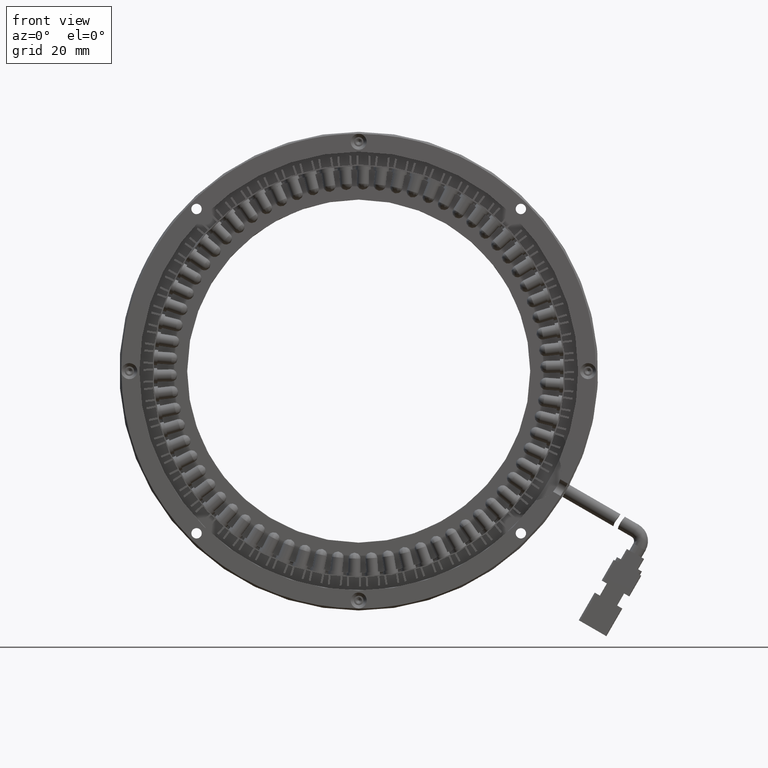
[diagram: clean part render]
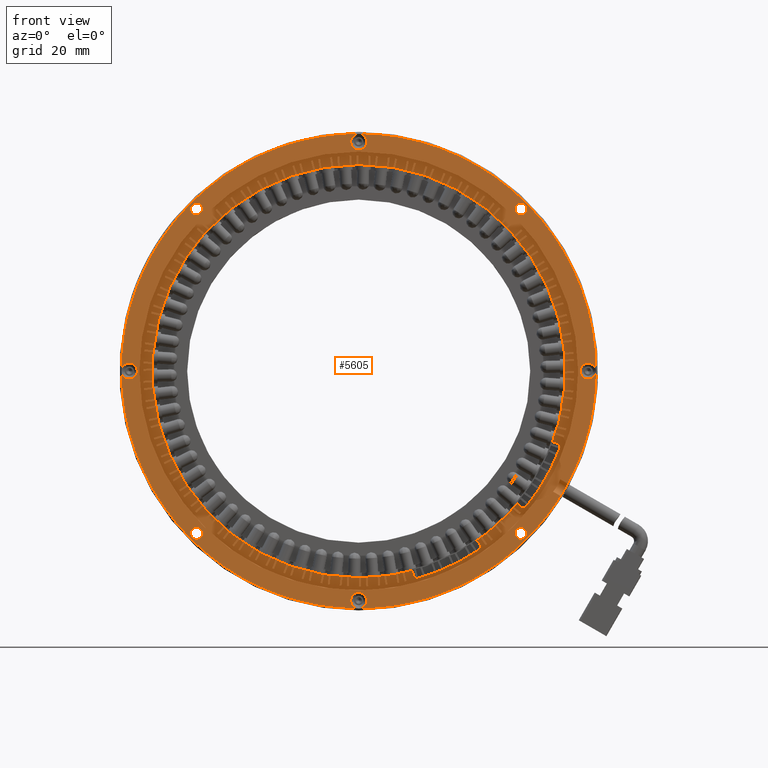
[diagram: same view with one face highlighted and labeled with its STEP entity id]
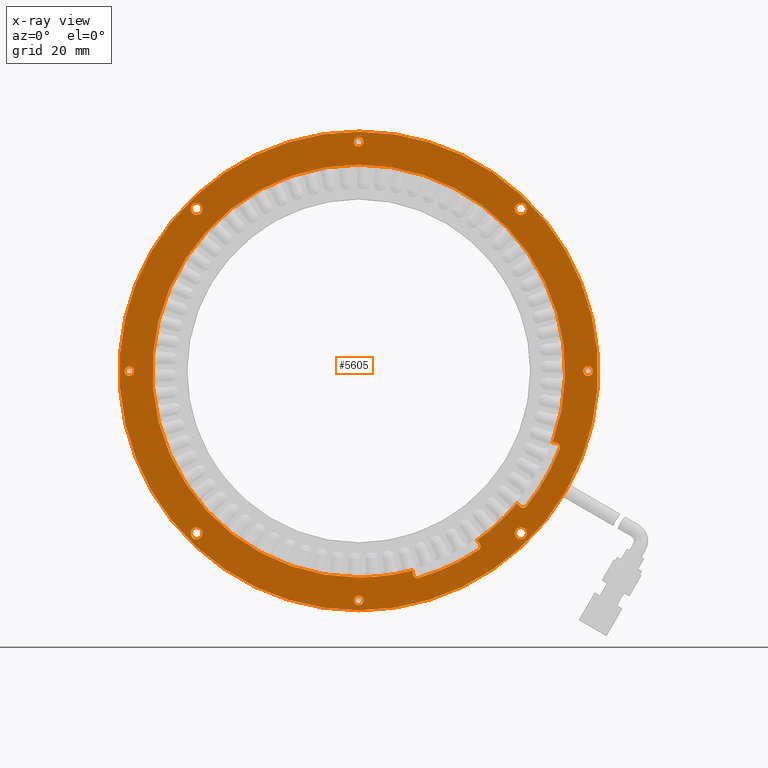
[diagram: x-ray of the same camera — body ghosted, the highlighted face saturated]
A machine part, front view. The second image highlights one B-rep face of the part: STEP entity #5605.
The next image is the same camera in x-ray: the body ghosted, the highlighted face saturated — about 0% of this face is hidden behind the body in this view.
In plain terms, the highlighted planar face has unit normal (0, 1, 0).
Its self-contained STEP definition (entity closure, byte-faithful):
#16 = EDGE_LOOP ( 'NONE', ( #7467, #26096 ) ) ;
#271 = DIRECTION ( 'NONE',  ( 0.0000000000000000000, 0.0000000000000000000, 1.000000000000000000 ) ) ;
#371 = DIRECTION ( 'NONE',  ( -0.0000000000000000000, 1.000000000000000000, 0.0000000000000000000 ) ) ;
#372 = AXIS2_PLACEMENT_3D ( 'NONE', #51367, #21735, #56369 ) ;
#426 = CARTESIAN_POINT ( 'NONE',  ( 70.98181902692999800, 21.01889671361712400, -50.34647656362000100 ) ) ;
#496 = AXIS2_PLACEMENT_3D ( 'NONE', #31059, #1414, #36026 ) ;
#821 = DIRECTION ( 'NONE',  ( -0.0000000000000000000, -1.000000000000000000, -0.0000000000000000000 ) ) ;
#1324 = VECTOR ( 'NONE', #44943, 1000.000000000000200 ) ;
#1414 = DIRECTION ( 'NONE',  ( 0.0000000000000000000, -1.000000000000000000, -0.0000000000000000000 ) ) ;
#1431 = DIRECTION ( 'NONE',  ( 0.0000000000000000000, -1.000000000000000000, 0.0000000000000000000 ) ) ;
#2138 = VERTEX_POINT ( 'NONE', #36192 ) ;
#2303 = DIRECTION ( 'NONE',  ( 0.0000000000000000000, -1.000000000000000000, -0.0000000000000000000 ) ) ;
#2433 = CARTESIAN_POINT ( 'NONE',  ( 113.9562451095000000, 21.01889671361712400, 0.0000000000000000000 ) ) ;
#2599 = EDGE_CURVE ( 'NONE', #31081, #60564, #63665, .T. ) ;
#2626 = CIRCLE ( 'NONE', #56353, 1.199999999999598500 ) ;
#2632 = DIRECTION ( 'NONE',  ( -0.0000000000000000000, 1.000000000000000000, -0.0000000000000000000 ) ) ;
#2735 = DIRECTION ( 'NONE',  ( 1.387778780781454000E-014, 0.0000000000000000000, 1.000000000000000000 ) ) ;
#2867 = FACE_OUTER_BOUND ( 'NONE', #16, .T. ) ;
#3204 = CARTESIAN_POINT ( 'NONE',  ( 105.3451509462000100, 21.01889671361712400, -18.85828428286999900 ) ) ;
#3447 = AXIS2_PLACEMENT_3D ( 'NONE', #2433, #37032, #7394 ) ;
#3589 = CARTESIAN_POINT ( 'NONE',  ( -5.986352945838000900, 21.01889671362000200, -62.40000000000000600 ) ) ;
#3903 = CARTESIAN_POINT ( 'NONE',  ( 97.11488502777000100, 21.01889671361723400, 40.65863991823000800 ) ) ;
#4033 = DIRECTION ( 'NONE',  ( 0.0000000000000000000, -1.000000000000000000, 0.0000000000000000000 ) ) ;
#4404 = FACE_BOUND ( 'NONE', #45137, .T. ) ;
#4615 = EDGE_CURVE ( 'NONE', #7716, #60564, #58438, .T. ) ;
#4621 = DIRECTION ( 'NONE',  ( 0.0000000000000000000, 0.0000000000000000000, 1.000000000000000000 ) ) ;
#4678 = VERTEX_POINT ( 'NONE', #11614 ) ;
#5013 = CARTESIAN_POINT ( 'NONE',  ( 105.9090680539999700, 21.01889671361712400, -19.06353332470000000 ) ) ;
#5026 = CARTESIAN_POINT ( 'NONE',  ( 85.94812115529238400, 21.01889671361679700, -42.52401377225068300 ) ) ;
#5125 = CIRCLE ( 'NONE', #42236, 1.000000000000000900 ) ;
#5572 = EDGE_CURVE ( 'NONE', #13397, #48005, #32298, .T. ) ;
#5605 = ADVANCED_FACE ( 'NONE', ( #45497, #43892, #17618, #4404, #55553, #30750, #42367, #29168, #16101, #2867 ), #47946, .T. ) ;
#5770 = EDGE_LOOP ( 'NONE', ( #43228, #20849 ) ) ;
#5774 = CIRCLE ( 'NONE', #41423, 1.200000000000000000 ) ;
#6103 = AXIS2_PLACEMENT_3D ( 'NONE', #3204, #37824, #8202 ) ;
#6238 = ORIENTED_EDGE ( 'NONE', *, *, #53490, .T. ) ;
#6480 = VERTEX_POINT ( 'NONE', #6535 ) ;
#6535 = CARTESIAN_POINT ( 'NONE',  ( 56.45624510954999000, 21.01889671361712400, 58.70000000000001700 ) ) ;
#6573 = CIRCLE ( 'NONE', #50766, 51.75000000000000700 ) ;
#6725 = EDGE_CURVE ( 'NONE', #17032, #14611, #2626, .T. ) ;
#7135 = DIRECTION ( 'NONE',  ( 0.0000000000000000000, 1.000000000000000000, 0.0000000000000000000 ) ) ;
#7394 = DIRECTION ( 'NONE',  ( 0.0000000000000000000, 0.0000000000000000000, -1.000000000000000000 ) ) ;
#7467 = ORIENTED_EDGE ( 'NONE', *, *, #23129, .T. ) ;
#7696 = CARTESIAN_POINT ( 'NONE',  ( 56.45624510954999000, 21.01889671361712400, -58.70000000000000300 ) ) ;
#7716 = VERTEX_POINT ( 'NONE', #56766 ) ;
#8074 = EDGE_CURVE ( 'NONE', #9113, #61714, #50055, .T. ) ;
#8202 = DIRECTION ( 'NONE',  ( -8.326672684688724500E-014, 0.0000000000000000000, 1.000000000000000000 ) ) ;
#8497 = CARTESIAN_POINT ( 'NONE',  ( 86.85038465600565900, 21.01889671362000200, -43.40732980994000200 ) ) ;
#8577 = DIRECTION ( 'NONE',  ( 0.0000000000000000000, 0.0000000000000000000, 1.000000000000000000 ) ) ;
#8662 = EDGE_CURVE ( 'NONE', #31245, #6480, #63081, .T. ) ;
#8725 = VERTEX_POINT ( 'NONE', #47288 ) ;
#8921 = DIRECTION ( 'NONE',  ( 0.0000000000000000000, 0.0000000000000000000, 1.000000000000000000 ) ) ;
#9113 = VERTEX_POINT ( 'NONE', #34913 ) ;
#9229 = EDGE_CURVE ( 'NONE', #4678, #46475, #64257, .T. ) ;
#9390 = AXIS2_PLACEMENT_3D ( 'NONE', #5013, #39601, #10003 ) ;
#9709 = CARTESIAN_POINT ( 'NONE',  ( 56.45624510954999700, 21.01889671361719500, 60.00000000000000000 ) ) ;
#10003 = DIRECTION ( 'NONE',  ( 0.0000000000000000000, 0.0000000000000000000, 1.000000000000000000 ) ) ;
#10027 = CIRCLE ( 'NONE', #56879, 0.9999999999999940000 ) ;
#10254 = EDGE_LOOP ( 'NONE', ( #20626, #60866 ) ) ;
#10342 = ORIENTED_EDGE ( 'NONE', *, *, #23416, .T. ) ;
#10447 = CIRCLE ( 'NONE', #59686, 60.00000000000000000 ) ;
#10934 = CIRCLE ( 'NONE', #21327, 1.200000000000013500 ) ;
#11251 = ORIENTED_EDGE ( 'NONE', *, *, #42212, .F. ) ;
#11408 = DIRECTION ( 'NONE',  ( 0.0000000000000000000, -1.000000000000000000, -0.0000000000000000000 ) ) ;
#11614 = CARTESIAN_POINT ( 'NONE',  ( 86.50617681832380900, 21.01889671361712400, -42.91575007264151500 ) ) ;
#11755 = AXIS2_PLACEMENT_3D ( 'NONE', #22348, #56936, #27288 ) ;
#11939 = AXIS2_PLACEMENT_3D ( 'NONE', #3589, #38190, #8577 ) ;
#12547 = ORIENTED_EDGE ( 'NONE', *, *, #5572, .T. ) ;
#12614 = ORIENTED_EDGE ( 'NONE', *, *, #55952, .F. ) ;
#12640 = CIRCLE ( 'NONE', #32114, 53.99999999999999300 ) ;
#12805 = CARTESIAN_POINT ( 'NONE',  ( 70.07451705029224300, 21.01889671361679700, -49.92599692893465100 ) ) ;
#13116 = EDGE_CURVE ( 'NONE', #38867, #8725, #5125, .T. ) ;
#13277 = CARTESIAN_POINT ( 'NONE',  ( 15.79760519132000100, 21.01889671361723400, -39.15863991822999400 ) ) ;
#13280 = DIRECTION ( 'NONE',  ( -0.5735764363525099900, 0.0000000000000000000, 0.8191520442879666200 ) ) ;
#13325 = VERTEX_POINT ( 'NONE', #46374 ) ;
#13397 = VERTEX_POINT ( 'NONE', #17392 ) ;
#13845 = AXIS2_PLACEMENT_3D ( 'NONE', #52298, #22649, #57275 ) ;
#13884 = DIRECTION ( 'NONE',  ( 0.0000000000000000000, 0.0000000000000000000, 1.000000000000000000 ) ) ;
#13916 = EDGE_LOOP ( 'NONE', ( #14972, #43594 ) ) ;
#14020 = CARTESIAN_POINT ( 'NONE',  ( 56.45624510954999000, 21.01889671361647400, 0.0000000000000000000 ) ) ;
#14164 = VERTEX_POINT ( 'NONE', #50775 ) ;
#14506 = CARTESIAN_POINT ( 'NONE',  ( 113.9562451095000000, 21.01889671361712400, 1.200000000000000000 ) ) ;
#14565 = CARTESIAN_POINT ( 'NONE',  ( 56.45624510954999000, 21.01889671361719500, -60.00000000000000000 ) ) ;
#14586 = CARTESIAN_POINT ( 'NONE',  ( 15.79760519132000100, 21.01889671361723400, 42.15863991823000800 ) ) ;
#14611 = VERTEX_POINT ( 'NONE', #31135 ) ;
#14872 = CARTESIAN_POINT ( 'NONE',  ( 56.45624510954999000, 21.01889671361712400, -56.30000000000000400 ) ) ;
#14972 = ORIENTED_EDGE ( 'NONE', *, *, #23962, .F. ) ;
#15102 = EDGE_CURVE ( 'NONE', #62702, #31757, #10027, .T. ) ;
#15464 = AXIS2_PLACEMENT_3D ( 'NONE', #25700, #60337, #30702 ) ;
#15672 = ORIENTED_EDGE ( 'NONE', *, *, #61418, .T. ) ;
#15782 = CARTESIAN_POINT ( 'NONE',  ( 105.6871710895282900, 21.01889671361996300, -17.91859166208542600 ) ) ;
#16101 = FACE_BOUND ( 'NONE', #47945, .T. ) ;
#16114 = ORIENTED_EDGE ( 'NONE', *, *, #30242, .T. ) ;
#16343 = CARTESIAN_POINT ( 'NONE',  ( 56.45624510954999000, 21.01889671361647400, 51.75000000000000700 ) ) ;
#16361 = ORIENTED_EDGE ( 'NONE', *, *, #45975, .T. ) ;
#16427 = AXIS2_PLACEMENT_3D ( 'NONE', #32281, #2632, #37218 ) ;
#16459 = EDGE_CURVE ( 'NONE', #47887, #40957, #10447, .T. ) ;
#16529 = DIRECTION ( 'NONE',  ( -0.0000000000000000000, 1.000000000000000000, 0.0000000000000000000 ) ) ;
#16743 = ORIENTED_EDGE ( 'NONE', *, *, #8074, .F. ) ;
#16816 = DIRECTION ( 'NONE',  ( 0.0000000000000000000, -1.000000000000000000, 0.0000000000000000000 ) ) ;
#16921 = VECTOR ( 'NONE', #13280, 1000.000000000000100 ) ;
#17032 = VERTEX_POINT ( 'NONE', #64019 ) ;
#17392 = CARTESIAN_POINT ( 'NONE',  ( 106.2510881973325600, 21.01889671361712400, -18.12384070392067100 ) ) ;
#17618 = FACE_BOUND ( 'NONE', #33808, .T. ) ;
#18458 = DIRECTION ( 'NONE',  ( 0.0000000000000000000, -1.000000000000000000, -0.0000000000000000000 ) ) ;
#18734 = ORIENTED_EDGE ( 'NONE', *, *, #36959, .T. ) ;
#18782 = EDGE_CURVE ( 'NONE', #44115, #7716, #6573, .T. ) ;
#19146 = LINE ( 'NONE', #59847, #1324 ) ;
#19663 = CARTESIAN_POINT ( 'NONE',  ( 97.11488502777000100, 21.01889671361723400, -40.65863991823000800 ) ) ;
#20036 = CARTESIAN_POINT ( 'NONE',  ( 56.45624510954999000, 21.01889671361712400, 0.0000000000000000000 ) ) ;
#20296 = ORIENTED_EDGE ( 'NONE', *, *, #53830, .T. ) ;
#20353 = ORIENTED_EDGE ( 'NONE', *, *, #4615, .T. ) ;
#20626 = ORIENTED_EDGE ( 'NONE', *, *, #24708, .F. ) ;
#20849 = ORIENTED_EDGE ( 'NONE', *, *, #53738, .T. ) ;
#21219 = CARTESIAN_POINT ( 'NONE',  ( 15.79760519132000100, 21.01889671361723400, 40.65863991823000800 ) ) ;
#21327 = AXIS2_PLACEMENT_3D ( 'NONE', #53787, #24081, #58744 ) ;
#21735 = DIRECTION ( 'NONE',  ( 0.0000000000000000000, -1.000000000000000000, 0.0000000000000000000 ) ) ;
#22335 = AXIS2_PLACEMENT_3D ( 'NONE', #27761, #62391, #32782 ) ;
#22348 = CARTESIAN_POINT ( 'NONE',  ( 15.79760519132000100, 21.01889671361723400, 40.65863991823000800 ) ) ;
#22479 = AXIS2_PLACEMENT_3D ( 'NONE', #36765, #7135, #41767 ) ;
#22649 = DIRECTION ( 'NONE',  ( 0.0000000000000000000, 1.000000000000000000, 0.0000000000000000000 ) ) ;
#22750 = EDGE_CURVE ( 'NONE', #33919, #49518, #58419, .T. ) ;
#22846 = CARTESIAN_POINT ( 'NONE',  ( 56.45624510954999000, 21.01889671361647400, 0.0000000000000000000 ) ) ;
#22914 = DIRECTION ( 'NONE',  ( 0.0000000000000000000, -1.000000000000000000, 0.0000000000000000000 ) ) ;
#23067 = CARTESIAN_POINT ( 'NONE',  ( 106.2510881973222600, 21.01889671362000200, -18.12384070391999900 ) ) ;
#23129 = EDGE_CURVE ( 'NONE', #40957, #47887, #55226, .T. ) ;
#23416 = EDGE_CURVE ( 'NONE', #31081, #13325, #27208, .T. ) ;
#23962 = EDGE_CURVE ( 'NONE', #33060, #56285, #49048, .T. ) ;
#24081 = DIRECTION ( 'NONE',  ( -0.0000000000000000000, 1.000000000000000000, -0.0000000000000000000 ) ) ;
#24551 = DIRECTION ( 'NONE',  ( 0.0000000000000000000, 0.0000000000000000000, 1.000000000000000000 ) ) ;
#24708 = EDGE_CURVE ( 'NONE', #41625, #2138, #52730, .T. ) ;
#24751 = AXIS2_PLACEMENT_3D ( 'NONE', #3903, #38532, #8921 ) ;
#24946 = DIRECTION ( 'NONE',  ( 0.0000000000000000000, 0.0000000000000000000, 1.000000000000000000 ) ) ;
#25070 = DIRECTION ( 'NONE',  ( 0.2588190451092419200, 0.0000000000000000000, -0.9659258262872673100 ) ) ;
#25651 = CARTESIAN_POINT ( 'NONE',  ( 97.11488502777000100, 21.01889671361723400, 42.15863991823000800 ) ) ;
#25700 = CARTESIAN_POINT ( 'NONE',  ( 56.45624510954999000, 21.01889671361647400, 0.0000000000000000000 ) ) ;
#25865 = EDGE_CURVE ( 'NONE', #31933, #4678, #43179, .T. ) ;
#26096 = ORIENTED_EDGE ( 'NONE', *, *, #16459, .T. ) ;
#26163 = DIRECTION ( 'NONE',  ( 0.0000000000000000000, 0.0000000000000000000, 1.000000000000000000 ) ) ;
#26222 = DIRECTION ( 'NONE',  ( 0.0000000000000000000, -1.000000000000000000, -0.0000000000000000000 ) ) ;
#26307 = CARTESIAN_POINT ( 'NONE',  ( 15.79760519132000100, 21.01889671361723400, -40.65863991823000800 ) ) ;
#26387 = ORIENTED_EDGE ( 'NONE', *, *, #52480, .T. ) ;
#26725 = EDGE_CURVE ( 'NONE', #31757, #44115, #38257, .T. ) ;
#26900 = EDGE_CURVE ( 'NONE', #40009, #50062, #49796, .T. ) ;
#27208 = LINE ( 'NONE', #30066, #32658 ) ;
#27288 = DIRECTION ( 'NONE',  ( 0.0000000000000000000, 0.0000000000000000000, 1.000000000000000000 ) ) ;
#27355 = ORIENTED_EDGE ( 'NONE', *, *, #35866, .T. ) ;
#27622 = DIRECTION ( 'NONE',  ( -0.0000000000000000000, 1.000000000000000000, -0.0000000000000000000 ) ) ;
#27761 = CARTESIAN_POINT ( 'NONE',  ( 56.45624510954999000, 21.01889671361712400, 57.50000000000000000 ) ) ;
#27787 = AXIS2_PLACEMENT_3D ( 'NONE', #426, #371, #271 ) ;
#27793 = DIRECTION ( 'NONE',  ( 0.0000000000000000000, 0.0000000000000000000, 1.000000000000000000 ) ) ;
#28595 = ORIENTED_EDGE ( 'NONE', *, *, #51877, .F. ) ;
#28820 = CIRCLE ( 'NONE', #11755, 1.500000000000001300 ) ;
#29168 = FACE_BOUND ( 'NONE', #10254, .T. ) ;
#29334 = CARTESIAN_POINT ( 'NONE',  ( 86.58925124384661800, 21.01889671361712400, -44.81073466603146500 ) ) ;
#30066 = CARTESIAN_POINT ( 'NONE',  ( 70.01589320061864900, 21.01889671362000200, -50.60529560871999200 ) ) ;
#30242 = EDGE_CURVE ( 'NONE', #55977, #31933, #46719, .T. ) ;
#30454 = CARTESIAN_POINT ( 'NONE',  ( 56.45624510954999000, 21.01889671361712400, 0.0000000000000000000 ) ) ;
#30702 = DIRECTION ( 'NONE',  ( -9.385943444898664700E-016, 0.0000000000000000000, 1.000000000000000000 ) ) ;
#30750 = FACE_BOUND ( 'NONE', #13916, .T. ) ;
#30897 = ORIENTED_EDGE ( 'NONE', *, *, #56844, .T. ) ;
#31059 = CARTESIAN_POINT ( 'NONE',  ( 97.69216072687002800, 21.01889671361712400, -33.29563429641999800 ) ) ;
#31069 = CARTESIAN_POINT ( 'NONE',  ( 113.9562451095000000, 21.01889671361712400, 0.0000000000000000000 ) ) ;
#31081 = VERTEX_POINT ( 'NONE', #38173 ) ;
#31135 = CARTESIAN_POINT ( 'NONE',  ( -1.043754890453999700, 21.01889671361712400, -1.200000000000000200 ) ) ;
#31245 = VERTEX_POINT ( 'NONE', #44898 ) ;
#31299 = CARTESIAN_POINT ( 'NONE',  ( 97.04937311718184400, 21.01889671361712400, -34.06167873954634500 ) ) ;
#31310 = DIRECTION ( 'NONE',  ( 0.0000000000000000000, 0.0000000000000000000, 1.000000000000000000 ) ) ;
#31757 = VERTEX_POINT ( 'NONE', #35078 ) ;
#31933 = VERTEX_POINT ( 'NONE', #56254 ) ;
#31948 = CARTESIAN_POINT ( 'NONE',  ( 86.03123261172997600, 21.01889671361712400, -43.98090624628999700 ) ) ;
#31970 = AXIS2_PLACEMENT_3D ( 'NONE', #30454, #821, #35447 ) ;
#32114 = AXIS2_PLACEMENT_3D ( 'NONE', #20036, #54648, #24946 ) ;
#32281 = CARTESIAN_POINT ( 'NONE',  ( 56.45624510954999000, 21.01889671361719500, 0.0000000000000000000 ) ) ;
#32298 = LINE ( 'NONE', #23067, #57044 ) ;
#32385 = DIRECTION ( 'NONE',  ( 0.0000000000000000000, -1.000000000000000000, -0.0000000000000000000 ) ) ;
#32658 = VECTOR ( 'NONE', #25070, 1000.000000000000200 ) ;
#32692 = VERTEX_POINT ( 'NONE', #49650 ) ;
#32782 = DIRECTION ( 'NONE',  ( 0.0000000000000000000, 0.0000000000000000000, -1.000000000000000000 ) ) ;
#33028 = DIRECTION ( 'NONE',  ( -0.9396926207839257900, 0.0000000000000000000, 0.3420201433311156900 ) ) ;
#33060 = VERTEX_POINT ( 'NONE', #13277 ) ;
#33685 = CARTESIAN_POINT ( 'NONE',  ( -1.043754890453999700, 21.01889671361712400, -4.014800644713822900E-013 ) ) ;
#33808 = EDGE_LOOP ( 'NONE', ( #6238, #48057 ) ) ;
#33919 = VERTEX_POINT ( 'NONE', #51308 ) ;
#34204 = AXIS2_PLACEMENT_3D ( 'NONE', #48052, #18458, #53046 ) ;
#34271 = DIRECTION ( 'NONE',  ( -0.0000000000000000000, 1.000000000000000000, 0.0000000000000000000 ) ) ;
#34673 = ORIENTED_EDGE ( 'NONE', *, *, #25865, .T. ) ;
#34913 = CARTESIAN_POINT ( 'NONE',  ( 15.79760519132000100, 21.01889671361723400, 39.15863991823000800 ) ) ;
#35078 = CARTESIAN_POINT ( 'NONE',  ( 105.0053479411685400, 21.01889671361679700, -17.91778764928664500 ) ) ;
#35322 = AXIS2_PLACEMENT_3D ( 'NONE', #21219, #55832, #26163 ) ;
#35447 = DIRECTION ( 'NONE',  ( 2.698458740408366800E-015, 0.0000000000000000000, 1.000000000000000000 ) ) ;
#35789 = ORIENTED_EDGE ( 'NONE', *, *, #15102, .T. ) ;
#35866 = EDGE_CURVE ( 'NONE', #13325, #42801, #38678, .T. ) ;
#36026 = DIRECTION ( 'NONE',  ( -1.387778780781444400E-014, 0.0000000000000000000, 1.000000000000000000 ) ) ;
#36038 = DIRECTION ( 'NONE',  ( 0.0000000000000000000, 0.0000000000000000000, -1.000000000000000000 ) ) ;
#36192 = CARTESIAN_POINT ( 'NONE',  ( 97.11488502777000100, 21.01889671361723400, 39.15863991823000800 ) ) ;
#36454 = CIRCLE ( 'NONE', #34204, 51.75000000000000700 ) ;
#36765 = CARTESIAN_POINT ( 'NONE',  ( 97.11488502777000100, 21.01889671361723400, 40.65863991823000800 ) ) ;
#36912 = DIRECTION ( 'NONE',  ( -1.387778780781463700E-014, 0.0000000000000000000, 1.000000000000000000 ) ) ;
#36959 = EDGE_CURVE ( 'NONE', #48005, #62702, #53053, .T. ) ;
#37032 = DIRECTION ( 'NONE',  ( 0.0000000000000000000, -1.000000000000000000, 0.0000000000000000000 ) ) ;
#37122 = ORIENTED_EDGE ( 'NONE', *, *, #43472, .T. ) ;
#37218 = DIRECTION ( 'NONE',  ( 0.0000000000000000000, 0.0000000000000000000, -1.000000000000000000 ) ) ;
#37824 = DIRECTION ( 'NONE',  ( 0.0000000000000000000, -1.000000000000000000, -0.0000000000000000000 ) ) ;
#38173 = CARTESIAN_POINT ( 'NONE',  ( 70.01589320062980400, 21.01889671361712400, -50.60529560872557700 ) ) ;
#38182 = EDGE_CURVE ( 'NONE', #42801, #55977, #12640, .T. ) ;
#38190 = DIRECTION ( 'NONE',  ( 0.0000000000000000000, 1.000000000000000000, 0.0000000000000000000 ) ) ;
#38257 = CIRCLE ( 'NONE', #15464, 51.75000000000000700 ) ;
#38434 = ORIENTED_EDGE ( 'NONE', *, *, #38182, .T. ) ;
#38532 = DIRECTION ( 'NONE',  ( 0.0000000000000000000, 1.000000000000000000, 0.0000000000000000000 ) ) ;
#38641 = DIRECTION ( 'NONE',  ( 0.0000000000000000000, 0.0000000000000000000, -1.000000000000000000 ) ) ;
#38678 = CIRCLE ( 'NONE', #47048, 0.9999999999999940000 ) ;
#38780 = ORIENTED_EDGE ( 'NONE', *, *, #26725, .T. ) ;
#38867 = VERTEX_POINT ( 'NONE', #50850 ) ;
#39601 = DIRECTION ( 'NONE',  ( 0.0000000000000000000, -1.000000000000000000, -0.0000000000000000000 ) ) ;
#40009 = VERTEX_POINT ( 'NONE', #62144 ) ;
#40138 = ORIENTED_EDGE ( 'NONE', *, *, #9229, .T. ) ;
#40206 = ORIENTED_EDGE ( 'NONE', *, *, #13116, .F. ) ;
#40957 = VERTEX_POINT ( 'NONE', #14565 ) ;
#41018 = CARTESIAN_POINT ( 'NONE',  ( 105.3451509462000100, 21.01889671361712400, -18.85828428286999900 ) ) ;
#41423 = AXIS2_PLACEMENT_3D ( 'NONE', #31069, #1431, #36038 ) ;
#41625 = VERTEX_POINT ( 'NONE', #25651 ) ;
#41767 = DIRECTION ( 'NONE',  ( 0.0000000000000000000, 0.0000000000000000000, 1.000000000000000000 ) ) ;
#42212 = EDGE_CURVE ( 'NONE', #61714, #9113, #28820, .T. ) ;
#42236 = AXIS2_PLACEMENT_3D ( 'NONE', #63898, #34271, #4621 ) ;
#42367 = FACE_BOUND ( 'NONE', #43608, .T. ) ;
#42801 = VERTEX_POINT ( 'NONE', #62268 ) ;
#42833 = AXIS2_PLACEMENT_3D ( 'NONE', #19663, #54250, #24551 ) ;
#43179 = LINE ( 'NONE', #8497, #16921 ) ;
#43228 = ORIENTED_EDGE ( 'NONE', *, *, #22750, .T. ) ;
#43472 = EDGE_CURVE ( 'NONE', #38867, #49750, #19146, .T. ) ;
#43594 = ORIENTED_EDGE ( 'NONE', *, *, #63681, .F. ) ;
#43608 = EDGE_LOOP ( 'NONE', ( #11251, #16743 ) ) ;
#43734 = AXIS2_PLACEMENT_3D ( 'NONE', #14020, #44428, #13884 ) ;
#43892 = FACE_BOUND ( 'NONE', #61523, .T. ) ;
#44115 = VERTEX_POINT ( 'NONE', #16343 ) ;
#44428 = DIRECTION ( 'NONE',  ( 0.0000000000000000000, -1.000000000000000000, -0.0000000000000000000 ) ) ;
#44690 = AXIS2_PLACEMENT_3D ( 'NONE', #46408, #16816, #51348 ) ;
#44898 = CARTESIAN_POINT ( 'NONE',  ( 56.45624510954999000, 21.01889671361712400, 56.29999999999999000 ) ) ;
#44943 = DIRECTION ( 'NONE',  ( 0.7660444431237696300, 0.0000000000000000000, -0.6427876096808288200 ) ) ;
#45137 = EDGE_LOOP ( 'NONE', ( #15672, #20296 ) ) ;
#45497 = FACE_BOUND ( 'NONE', #5770, .T. ) ;
#45506 = EDGE_CURVE ( 'NONE', #14164, #32692, #49565, .T. ) ;
#45975 = EDGE_CURVE ( 'NONE', #49750, #14164, #47762, .T. ) ;
#46016 = DIRECTION ( 'NONE',  ( 0.0000000000000000000, 0.0000000000000000000, 1.000000000000000000 ) ) ;
#46137 = CARTESIAN_POINT ( 'NONE',  ( 15.79760519132000100, 21.01889671361723400, -40.65863991823000800 ) ) ;
#46374 = CARTESIAN_POINT ( 'NONE',  ( 70.17121259352165900, 21.01889671361712400, -51.18495547437836300 ) ) ;
#46408 = CARTESIAN_POINT ( 'NONE',  ( 56.45624510954999000, 21.01889671361712400, -57.50000000000000000 ) ) ;
#46475 = VERTEX_POINT ( 'NONE', #5026 ) ;
#46719 = CIRCLE ( 'NONE', #55686, 0.9999999999999870100 ) ;
#46946 = AXIS2_PLACEMENT_3D ( 'NONE', #46137, #16529, #51075 ) ;
#47048 = AXIS2_PLACEMENT_3D ( 'NONE', #61991, #32385, #2735 ) ;
#47199 = AXIS2_PLACEMENT_3D ( 'NONE', #33685, #4033, #38641 ) ;
#47272 = AXIS2_PLACEMENT_3D ( 'NONE', #55889, #26222, #60850 ) ;
#47288 = CARTESIAN_POINT ( 'NONE',  ( 96.24805580926177100, 21.01889671361679700, -33.08586255847507800 ) ) ;
#47452 = ORIENTED_EDGE ( 'NONE', *, *, #2599, .F. ) ;
#47762 = CIRCLE ( 'NONE', #496, 1.000000000000000900 ) ;
#47887 = VERTEX_POINT ( 'NONE', #9709 ) ;
#47912 = CARTESIAN_POINT ( 'NONE',  ( 15.79760519132000100, 21.01889671361723400, -42.15863991823002300 ) ) ;
#47945 = EDGE_LOOP ( 'NONE', ( #38434, #16114, #34673, #40138, #30897, #40206, #37122, #16361, #48060, #26387, #12547, #18734, #35789, #38780, #54352, #20353, #47452, #10342, #27355 ) ) ;
#47946 = PLANE ( 'NONE',  #11939 ) ;
#48005 = VERTEX_POINT ( 'NONE', #15782 ) ;
#48052 = CARTESIAN_POINT ( 'NONE',  ( 56.45624510954999000, 21.01889671361647400, 0.0000000000000000000 ) ) ;
#48057 = ORIENTED_EDGE ( 'NONE', *, *, #6725, .T. ) ;
#48060 = ORIENTED_EDGE ( 'NONE', *, *, #45506, .T. ) ;
#49048 = CIRCLE ( 'NONE', #62011, 1.500000000000015100 ) ;
#49518 = VERTEX_POINT ( 'NONE', #14506 ) ;
#49565 = CIRCLE ( 'NONE', #31970, 53.99999999999999300 ) ;
#49650 = CARTESIAN_POINT ( 'NONE',  ( 106.8421401850278200, 21.01889671361712400, -19.42322263271341500 ) ) ;
#49750 = VERTEX_POINT ( 'NONE', #31299 ) ;
#49796 = CIRCLE ( 'NONE', #13845, 1.500000000000015100 ) ;
#50055 = CIRCLE ( 'NONE', #35322, 1.500000000000001300 ) ;
#50062 = VERTEX_POINT ( 'NONE', #58506 ) ;
#50608 = CIRCLE ( 'NONE', #22479, 1.500000000000001300 ) ;
#50645 = CIRCLE ( 'NONE', #372, 1.199999999999999700 ) ;
#50766 = AXIS2_PLACEMENT_3D ( 'NONE', #22846, #57464, #27793 ) ;
#50775 = CARTESIAN_POINT ( 'NONE',  ( 98.47019687058852400, 21.01889671361712400, -33.92385381145729200 ) ) ;
#50850 = CARTESIAN_POINT ( 'NONE',  ( 96.58966367894359500, 21.01889671361712400, -33.67593671947526000 ) ) ;
#50946 = CIRCLE ( 'NONE', #9390, 1.000000000000000900 ) ;
#51075 = DIRECTION ( 'NONE',  ( 0.0000000000000000000, 0.0000000000000000000, 1.000000000000000000 ) ) ;
#51308 = CARTESIAN_POINT ( 'NONE',  ( 113.9562451095000000, 21.01889671361712400, -1.200000000000000000 ) ) ;
#51348 = DIRECTION ( 'NONE',  ( 0.0000000000000000000, 0.0000000000000000000, -1.000000000000000000 ) ) ;
#51367 = CARTESIAN_POINT ( 'NONE',  ( 56.45624510954999000, 21.01889671361712400, -57.50000000000000000 ) ) ;
#51806 = VERTEX_POINT ( 'NONE', #7696 ) ;
#51877 = EDGE_CURVE ( 'NONE', #6480, #31245, #10934, .T. ) ;
#52298 = CARTESIAN_POINT ( 'NONE',  ( 97.11488502777000100, 21.01889671361723400, -40.65863991823000800 ) ) ;
#52415 = CIRCLE ( 'NONE', #42833, 1.500000000000015100 ) ;
#52480 = EDGE_CURVE ( 'NONE', #32692, #13397, #50946, .T. ) ;
#52574 = CARTESIAN_POINT ( 'NONE',  ( -1.043754890453999700, 21.01889671361712400, -4.014800644713822900E-013 ) ) ;
#52690 = CARTESIAN_POINT ( 'NONE',  ( 105.3451509462000100, 21.01889671361712400, -17.85828428287000200 ) ) ;
#52730 = CIRCLE ( 'NONE', #24751, 1.500000000000001300 ) ;
#53046 = DIRECTION ( 'NONE',  ( 0.0000000000000000000, 0.0000000000000000000, 1.000000000000000000 ) ) ;
#53053 = CIRCLE ( 'NONE', #6103, 0.9999999999999940000 ) ;
#53490 = EDGE_CURVE ( 'NONE', #14611, #17032, #61423, .T. ) ;
#53738 = EDGE_CURVE ( 'NONE', #49518, #33919, #5774, .T. ) ;
#53787 = CARTESIAN_POINT ( 'NONE',  ( 56.45624510954999000, 21.01889671361712400, 57.50000000000000000 ) ) ;
#53830 = EDGE_CURVE ( 'NONE', #59570, #51806, #50645, .T. ) ;
#54250 = DIRECTION ( 'NONE',  ( 0.0000000000000000000, 1.000000000000000000, 0.0000000000000000000 ) ) ;
#54352 = ORIENTED_EDGE ( 'NONE', *, *, #18782, .T. ) ;
#54648 = DIRECTION ( 'NONE',  ( -0.0000000000000000000, -1.000000000000000000, -0.0000000000000000000 ) ) ;
#55226 = CIRCLE ( 'NONE', #16427, 60.00000000000000000 ) ;
#55553 = FACE_BOUND ( 'NONE', #62232, .T. ) ;
#55686 = AXIS2_PLACEMENT_3D ( 'NONE', #31948, #2303, #36912 ) ;
#55832 = DIRECTION ( 'NONE',  ( -0.0000000000000000000, 1.000000000000000000, 0.0000000000000000000 ) ) ;
#55889 = CARTESIAN_POINT ( 'NONE',  ( 85.68702477404001200, 21.01889671361712400, -43.48932650898999000 ) ) ;
#55952 = EDGE_CURVE ( 'NONE', #50062, #40009, #52415, .T. ) ;
#55977 = VERTEX_POINT ( 'NONE', #29334 ) ;
#56254 = CARTESIAN_POINT ( 'NONE',  ( 86.85038465601374500, 21.01889671361712400, -43.40732980994152300 ) ) ;
#56285 = VERTEX_POINT ( 'NONE', #47912 ) ;
#56353 = AXIS2_PLACEMENT_3D ( 'NONE', #52574, #22914, #57537 ) ;
#56369 = DIRECTION ( 'NONE',  ( 0.0000000000000000000, 0.0000000000000000000, -1.000000000000000000 ) ) ;
#56766 = CARTESIAN_POINT ( 'NONE',  ( 56.45624510954999700, 21.01889671361647400, -51.75000000000000700 ) ) ;
#56796 = CIRCLE ( 'NONE', #46946, 1.500000000000015100 ) ;
#56844 = EDGE_CURVE ( 'NONE', #46475, #8725, #36454, .T. ) ;
#56879 = AXIS2_PLACEMENT_3D ( 'NONE', #41018, #11408, #46016 ) ;
#56936 = DIRECTION ( 'NONE',  ( -0.0000000000000000000, 1.000000000000000000, 0.0000000000000000000 ) ) ;
#57044 = VECTOR ( 'NONE', #33028, 1000.000000000000100 ) ;
#57275 = DIRECTION ( 'NONE',  ( 0.0000000000000000000, 0.0000000000000000000, 1.000000000000000000 ) ) ;
#57294 = CARTESIAN_POINT ( 'NONE',  ( 56.45624510954999000, 21.01889671361719500, 0.0000000000000000000 ) ) ;
#57434 = ORIENTED_EDGE ( 'NONE', *, *, #26900, .F. ) ;
#57464 = DIRECTION ( 'NONE',  ( 0.0000000000000000000, -1.000000000000000000, -0.0000000000000000000 ) ) ;
#57537 = DIRECTION ( 'NONE',  ( 0.0000000000000000000, 0.0000000000000000000, -1.000000000000000000 ) ) ;
#57992 = CIRCLE ( 'NONE', #44690, 1.199999999999999700 ) ;
#58419 = CIRCLE ( 'NONE', #3447, 1.200000000000000000 ) ;
#58438 = CIRCLE ( 'NONE', #43734, 51.75000000000000700 ) ;
#58506 = CARTESIAN_POINT ( 'NONE',  ( 97.11488502777000100, 21.01889671361723400, -42.15863991823002300 ) ) ;
#58744 = DIRECTION ( 'NONE',  ( 0.0000000000000000000, 0.0000000000000000000, -1.000000000000000000 ) ) ;
#59570 = VERTEX_POINT ( 'NONE', #14872 ) ;
#59686 = AXIS2_PLACEMENT_3D ( 'NONE', #57294, #27622, #62248 ) ;
#59847 = CARTESIAN_POINT ( 'NONE',  ( 96.58966367892394100, 21.01889671362000200, -33.67593671947000200 ) ) ;
#60337 = DIRECTION ( 'NONE',  ( 0.0000000000000000000, -1.000000000000000000, -0.0000000000000000000 ) ) ;
#60564 = VERTEX_POINT ( 'NONE', #12805 ) ;
#60850 = DIRECTION ( 'NONE',  ( 1.387778780781454000E-014, 0.0000000000000000000, 1.000000000000000000 ) ) ;
#60866 = ORIENTED_EDGE ( 'NONE', *, *, #63706, .F. ) ;
#60939 = DIRECTION ( 'NONE',  ( -0.0000000000000000000, 1.000000000000000000, 0.0000000000000000000 ) ) ;
#61418 = EDGE_CURVE ( 'NONE', #51806, #59570, #57992, .T. ) ;
#61423 = CIRCLE ( 'NONE', #47199, 1.199999999999598500 ) ;
#61523 = EDGE_LOOP ( 'NONE', ( #62630, #28595 ) ) ;
#61714 = VERTEX_POINT ( 'NONE', #14586 ) ;
#61991 = CARTESIAN_POINT ( 'NONE',  ( 71.13713841981999100, 21.01889671361712400, -50.92613642926999500 ) ) ;
#62011 = AXIS2_PLACEMENT_3D ( 'NONE', #26307, #60939, #31310 ) ;
#62144 = CARTESIAN_POINT ( 'NONE',  ( 97.11488502777000100, 21.01889671361723400, -39.15863991822999400 ) ) ;
#62232 = EDGE_LOOP ( 'NONE', ( #57434, #12614 ) ) ;
#62248 = DIRECTION ( 'NONE',  ( 0.0000000000000000000, 0.0000000000000000000, -1.000000000000000000 ) ) ;
#62268 = CARTESIAN_POINT ( 'NONE',  ( 71.41413640679510900, 21.01889671361712400, -51.88700692793715800 ) ) ;
#62391 = DIRECTION ( 'NONE',  ( -0.0000000000000000000, 1.000000000000000000, -0.0000000000000000000 ) ) ;
#62630 = ORIENTED_EDGE ( 'NONE', *, *, #8662, .F. ) ;
#62702 = VERTEX_POINT ( 'NONE', #52690 ) ;
#63081 = CIRCLE ( 'NONE', #22335, 1.200000000000013500 ) ;
#63665 = CIRCLE ( 'NONE', #27787, 1.000000000000000900 ) ;
#63681 = EDGE_CURVE ( 'NONE', #56285, #33060, #56796, .T. ) ;
#63706 = EDGE_CURVE ( 'NONE', #2138, #41625, #50608, .T. ) ;
#63898 = CARTESIAN_POINT ( 'NONE',  ( 97.23245128862998900, 21.01889671361712400, -32.90989227635000700 ) ) ;
#64019 = CARTESIAN_POINT ( 'NONE',  ( -1.043754890453999500, 21.01889671361712400, 1.199999999999197000 ) ) ;
#64257 = CIRCLE ( 'NONE', #47272, 0.9999999999999940000 ) ;